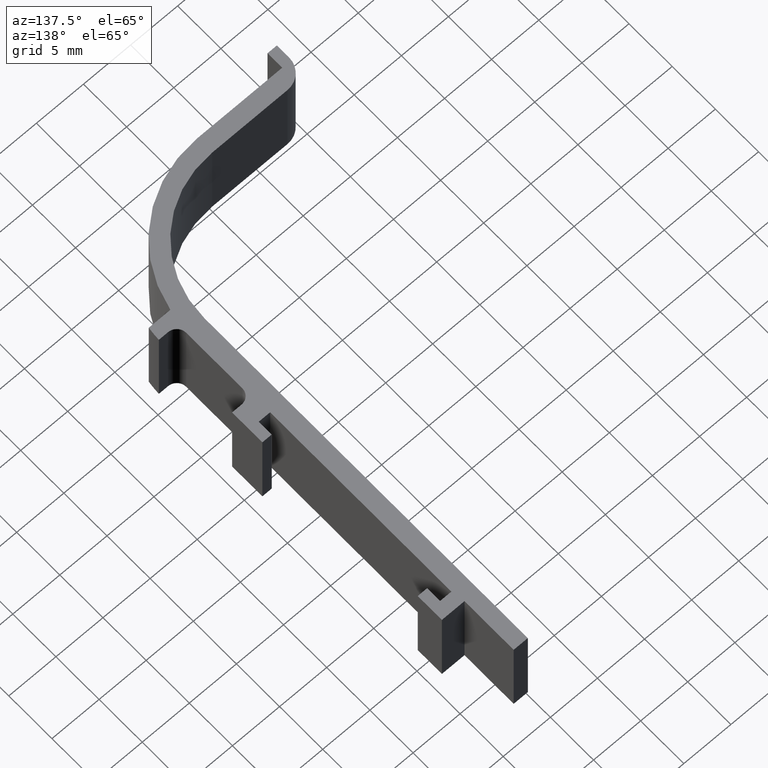
[diagram: clean part render]
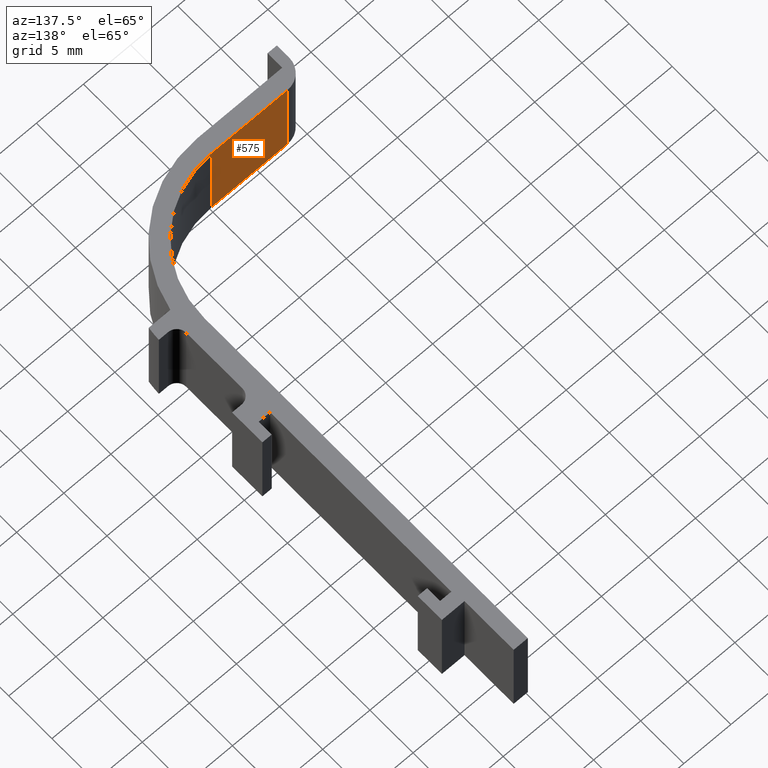
[diagram: same view with one face highlighted and labeled with its STEP entity id]
A machine part, auxiliary view. The second image highlights one B-rep face of the part: STEP entity #575.
In plain terms, the highlighted planar face has unit normal (0, -1, 0).
Its self-contained STEP definition (entity closure, byte-faithful):
#39=FACE_OUTER_BOUND('',#69,.T.);
#69=EDGE_LOOP('',(#449,#450,#451,#452));
#113=LINE('',#855,#185);
#123=LINE('',#880,#195);
#128=LINE('',#892,#200);
#144=LINE('',#928,#216);
#185=VECTOR('',#679,8.00000000000001);
#195=VECTOR('',#701,10.);
#200=VECTOR('',#710,8.00000000000001);
#216=VECTOR('',#734,10.);
#261=VERTEX_POINT('',#852);
#262=VERTEX_POINT('',#854);
#270=VERTEX_POINT('',#876);
#276=VERTEX_POINT('',#891);
#318=EDGE_CURVE('',#261,#262,#113,.T.);
#331=EDGE_CURVE('',#262,#270,#123,.T.);
#337=EDGE_CURVE('',#270,#276,#128,.T.);
#356=EDGE_CURVE('',#261,#276,#144,.T.);
#449=ORIENTED_EDGE('',*,*,#331,.F.);
#450=ORIENTED_EDGE('',*,*,#318,.F.);
#451=ORIENTED_EDGE('',*,*,#356,.T.);
#452=ORIENTED_EDGE('',*,*,#337,.F.);
#549=PLANE('',#619);
#575=ADVANCED_FACE('',(#39),#549,.F.);
#619=AXIS2_PLACEMENT_3D('',#927,#732,#733);
#679=DIRECTION('',(-1.,-3.12250225675825E-16,0.));
#701=DIRECTION('',(0.,0.,-1.));
#710=DIRECTION('',(1.,3.12250225675825E-16,0.));
#732=DIRECTION('center_axis',(3.12250225675825E-16,-1.,0.));
#733=DIRECTION('ref_axis',(0.,0.,-1.));
#734=DIRECTION('',(0.,0.,-1.));
#852=CARTESIAN_POINT('',(-9.99999999999999,-0.0999999999999979,5.));
#854=CARTESIAN_POINT('',(-18.,-0.1,5.));
#855=CARTESIAN_POINT('',(-11.1870720674522,-0.0999999999999979,5.));
#876=CARTESIAN_POINT('',(-18.,-0.1,-5.));
#880=CARTESIAN_POINT('',(-18.,-0.1,2.5));
#891=CARTESIAN_POINT('',(-9.99999999999999,-0.0999999999999979,-5.));
#892=CARTESIAN_POINT('',(-11.1870720674522,-0.0999999999999979,-5.));
#927=CARTESIAN_POINT('Origin',(-20.,-0.100000000000001,5.));
#928=CARTESIAN_POINT('',(-9.99999999999999,-0.0999999999999979,5.));